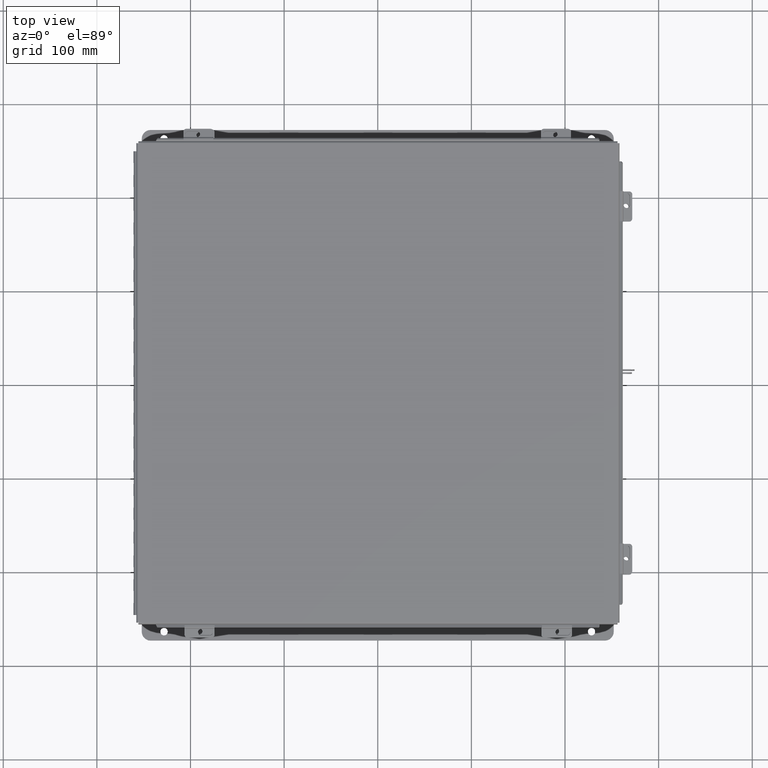
[diagram: clean part render]
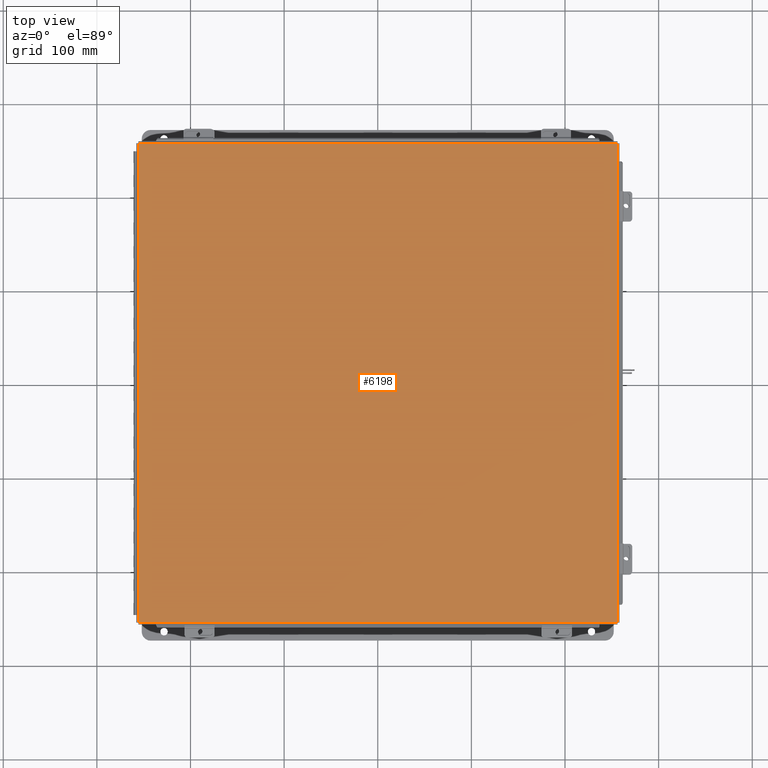
[diagram: same view with one face highlighted and labeled with its STEP entity id]
A machine part, top view. The second image highlights one B-rep face of the part: STEP entity #6198.
In plain terms, the highlighted planar face has unit normal (-0, -0, 1).
Its self-contained STEP definition (entity closure, byte-faithful):
#34 = DIRECTION ( 'NONE',  ( 5.938065620492508100E-059, -1.846427556282924300E-029, -1.000000000000000000 ) ) ;
#439 = VERTEX_POINT ( 'NONE', #6201 ) ;
#676 = CARTESIAN_POINT ( 'NONE',  ( 10.06855000000003600, 10.07447893218811600, -0.07470000000000015500 ) ) ;
#1062 = CARTESIAN_POINT ( 'NONE',  ( -10.06855000000003200, -10.06855000000001400, -0.07470000000000015500 ) ) ;
#1850 = VERTEX_POINT ( 'NONE', #13331 ) ;
#2863 = AXIS2_PLACEMENT_3D ( 'NONE', #15846, #34, #4031 ) ;
#3351 = CARTESIAN_POINT ( 'NONE',  ( 10.07447893218816600, -10.06855000000001400, -0.07469999999999033000 ) ) ;
#3889 = VERTEX_POINT ( 'NONE', #9252 ) ;
#4031 = DIRECTION ( 'NONE',  ( -1.000000000000000000, -3.215975411700707400E-030, 0.0000000000000000000 ) ) ;
#4250 = DIRECTION ( 'NONE',  ( -3.166671605124525800E-030, -1.000000000000000000, -1.853823127269377700E-029 ) ) ;
#4358 = LINE ( 'NONE', #676, #13041 ) ;
#4363 = EDGE_LOOP ( 'NONE', ( #20718, #10630, #18000, #9841 ) ) ;
#4425 = DIRECTION ( 'NONE',  ( 1.000000000000000000, 3.215975411700707400E-030, -0.0000000000000000000 ) ) ;
#4452 = VERTEX_POINT ( 'NONE', #1062 ) ;
#4645 = FACE_OUTER_BOUND ( 'NONE', #4363, .T. ) ;
#6198 = ADVANCED_FACE ( 'NONE', ( #4645 ), #10910, .T. ) ;
#6201 = CARTESIAN_POINT ( 'NONE',  ( -10.06855000000003200, 10.06854999999998400, -0.07469999999999907300 ) ) ;
#6997 = EDGE_CURVE ( 'NONE', #3889, #1850, #4358, .T. ) ;
#7524 = EDGE_CURVE ( 'NONE', #4452, #439, #21169, .T. ) ;
#7682 = VECTOR ( 'NONE', #20705, 39.37007874015748100 ) ;
#8219 = LINE ( 'NONE', #3351, #7682 ) ;
#9252 = CARTESIAN_POINT ( 'NONE',  ( 10.06855000000003600, 10.06854999999998100, -0.07470000000000015500 ) ) ;
#9841 = ORIENTED_EDGE ( 'NONE', *, *, #7524, .T. ) ;
#10630 = ORIENTED_EDGE ( 'NONE', *, *, #6997, .T. ) ;
#10840 = VECTOR ( 'NONE', #19554, 39.37007874015748100 ) ;
#10910 = PLANE ( 'NONE',  #2863 ) ;
#13041 = VECTOR ( 'NONE', #4250, 39.37007874015748100 ) ;
#13331 = CARTESIAN_POINT ( 'NONE',  ( 10.06855000000003600, -10.06855000000001400, -0.07469999999999797600 ) ) ;
#14079 = VECTOR ( 'NONE', #4425, 39.37007874015748100 ) ;
#14316 = CARTESIAN_POINT ( 'NONE',  ( -10.06855000000003200, -10.07447893218814800, -0.07470000000000015500 ) ) ;
#15846 = CARTESIAN_POINT ( 'NONE',  ( 0.0000000000000000000, 0.0000000000000000000, -0.07470000000000015500 ) ) ;
#16532 = CARTESIAN_POINT ( 'NONE',  ( -10.07447893218816600, 10.06854999999998400, -0.07469999999999907300 ) ) ;
#16744 = EDGE_CURVE ( 'NONE', #439, #3889, #18696, .T. ) ;
#18000 = ORIENTED_EDGE ( 'NONE', *, *, #20071, .T. ) ;
#18696 = LINE ( 'NONE', #16532, #14079 ) ;
#19554 = DIRECTION ( 'NONE',  ( 3.166671605124525800E-030, 1.000000000000000000, 1.853823127269377700E-029 ) ) ;
#20071 = EDGE_CURVE ( 'NONE', #1850, #4452, #8219, .T. ) ;
#20705 = DIRECTION ( 'NONE',  ( -1.000000000000000000, -3.205297876175390800E-030, -8.208677865577550200E-017 ) ) ;
#20718 = ORIENTED_EDGE ( 'NONE', *, *, #16744, .T. ) ;
#21169 = LINE ( 'NONE', #14316, #10840 ) ;